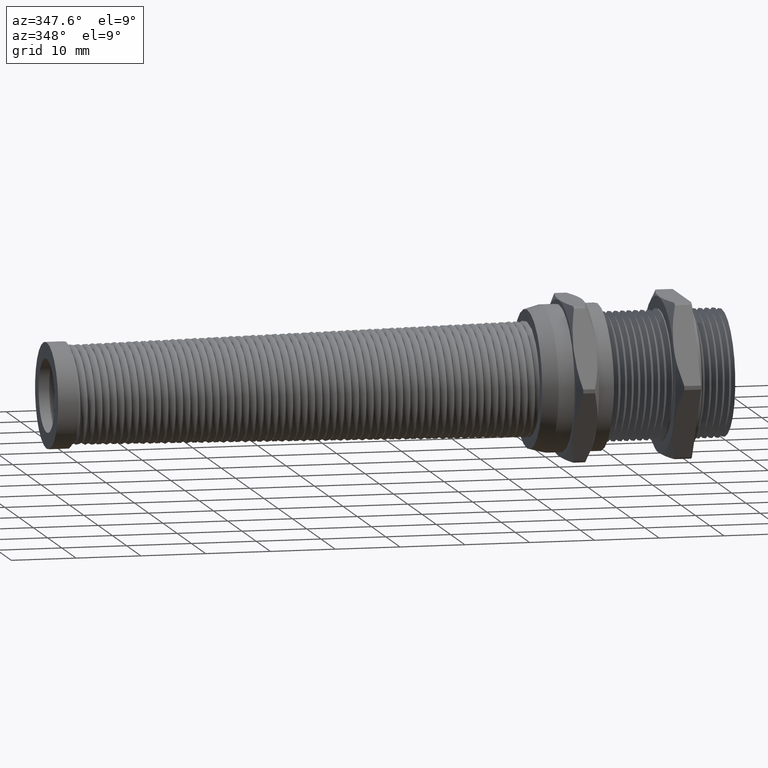
[diagram: clean part render]
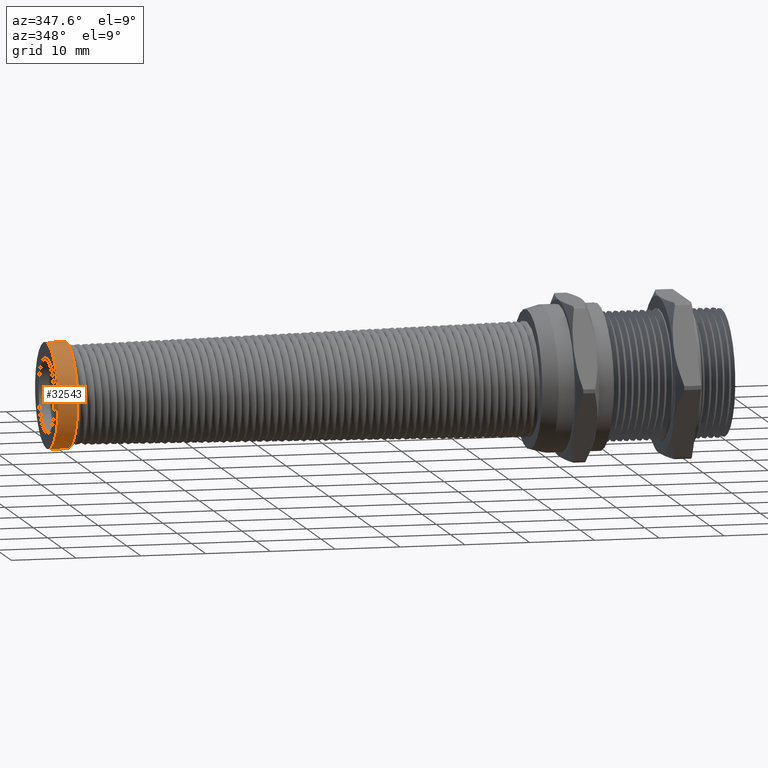
[diagram: same view with one face highlighted and labeled with its STEP entity id]
A machine part, auxiliary view. The second image highlights one B-rep face of the part: STEP entity #32543.
In plain terms, the highlighted cylindrical surface (partial cylindrical patch) has radius 8.1201 mm, axis along (1, 0, 0).
Its self-contained STEP definition (entity closure, byte-faithful):
#56 = EDGE_LOOP ( 'NONE', ( #32545, #33761, #33549, #33475 ) ) ;
#5254 = EDGE_CURVE ( 'NONE', #36788, #36789, #26948, .T. ) ;
#5265 = EDGE_CURVE ( 'NONE', #36764, #36773, #27009, .T. ) ;
#26944 = DIRECTION ( 'NONE',  ( 0.0000000000000000000, 0.0000000000000000000, 1.000000000000000000 ) ) ;
#26945 = DIRECTION ( 'NONE',  ( -1.000000000000000000, 0.0000000000000000000, 0.0000000000000000000 ) ) ;
#26946 = AXIS2_PLACEMENT_3D ( 'NONE', #26953, #26945, #26944 ) ;
#26948 = CIRCLE ( 'NONE', #26946, 0.3196900000000000300 ) ;
#26953 = CARTESIAN_POINT ( 'NONE',  ( -3.509999999999999800, 0.0000000000000000000, 0.0000000000000000000 ) ) ;
#27001 = DIRECTION ( 'NONE',  ( 0.0000000000000000000, 0.0000000000000000000, 1.000000000000000000 ) ) ;
#27002 = DIRECTION ( 'NONE',  ( -1.000000000000000000, 0.0000000000000000000, 0.0000000000000000000 ) ) ;
#27003 = CARTESIAN_POINT ( 'NONE',  ( -3.391909212598425100, 0.0000000000000000000, 0.0000000000000000000 ) ) ;
#27004 = AXIS2_PLACEMENT_3D ( 'NONE', #27003, #27002, #27001 ) ;
#27009 = CIRCLE ( 'NONE', #27004, 0.3196900000000000300 ) ;
#28349 = DIRECTION ( 'NONE',  ( 0.0000000000000000000, 0.0000000000000000000, -1.000000000000000000 ) ) ;
#28350 = DIRECTION ( 'NONE',  ( 1.000000000000000000, 0.0000000000000000000, 0.0000000000000000000 ) ) ;
#28351 = CARTESIAN_POINT ( 'NONE',  ( -3.509999999999999800, 0.0000000000000000000, 0.0000000000000000000 ) ) ;
#28352 = AXIS2_PLACEMENT_3D ( 'NONE', #28351, #28350, #28349 ) ;
#28354 = CYLINDRICAL_SURFACE ( 'NONE', #28352, 0.3196900000000000300 ) ;
#28355 = FACE_OUTER_BOUND ( 'NONE', #56, .T. ) ;
#28608 = CARTESIAN_POINT ( 'NONE',  ( -3.391909212598425100, 3.915073352194173800E-017, 0.3196900000000000300 ) ) ;
#28622 = CARTESIAN_POINT ( 'NONE',  ( -3.391909212598425100, 0.0000000000000000000, -0.3196900000000000300 ) ) ;
#28628 = DIRECTION ( 'NONE',  ( 1.000000000000000000, 0.0000000000000000000, 0.0000000000000000000 ) ) ;
#28629 = VECTOR ( 'NONE', #28628, 39.37007874015748100 ) ;
#28630 = CARTESIAN_POINT ( 'NONE',  ( -3.509999999999999800, 0.0000000000000000000, -0.3196900000000000300 ) ) ;
#28631 = LINE ( 'NONE', #28630, #28629 ) ;
#28644 = CARTESIAN_POINT ( 'NONE',  ( -3.509999999999999800, 3.915073352194173800E-017, 0.3196900000000000300 ) ) ;
#28645 = CARTESIAN_POINT ( 'NONE',  ( -3.509999999999999800, 0.0000000000000000000, -0.3196900000000000300 ) ) ;
#28646 = DIRECTION ( 'NONE',  ( 1.000000000000000000, 0.0000000000000000000, 0.0000000000000000000 ) ) ;
#28647 = VECTOR ( 'NONE', #28646, 39.37007874015748100 ) ;
#28648 = CARTESIAN_POINT ( 'NONE',  ( -3.509999999999999800, 3.915073352194173800E-017, 0.3196900000000000300 ) ) ;
#28649 = LINE ( 'NONE', #28648, #28647 ) ;
#32543 = ADVANCED_FACE ( 'NONE', ( #28355 ), #28354, .T. ) ;
#32545 = ORIENTED_EDGE ( 'NONE', *, *, #36787, .F. ) ;
#33475 = ORIENTED_EDGE ( 'NONE', *, *, #5265, .T. ) ;
#33549 = ORIENTED_EDGE ( 'NONE', *, *, #36762, .T. ) ;
#33761 = ORIENTED_EDGE ( 'NONE', *, *, #5254, .F. ) ;
#36762 = EDGE_CURVE ( 'NONE', #36788, #36764, #28631, .T. ) ;
#36764 = VERTEX_POINT ( 'NONE', #28622 ) ;
#36773 = VERTEX_POINT ( 'NONE', #28608 ) ;
#36787 = EDGE_CURVE ( 'NONE', #36789, #36773, #28649, .T. ) ;
#36788 = VERTEX_POINT ( 'NONE', #28645 ) ;
#36789 = VERTEX_POINT ( 'NONE', #28644 ) ;